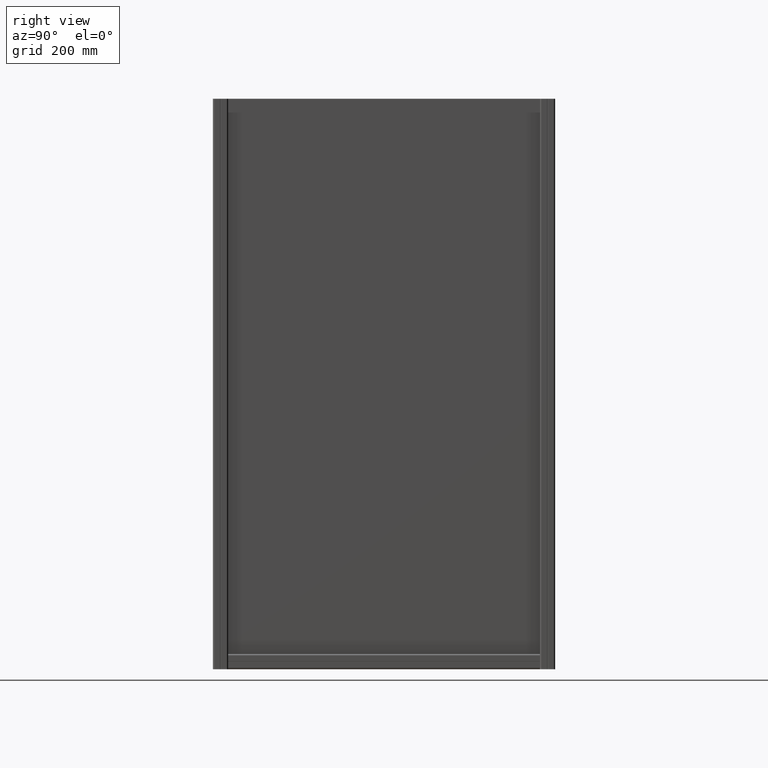
[diagram: clean part render]
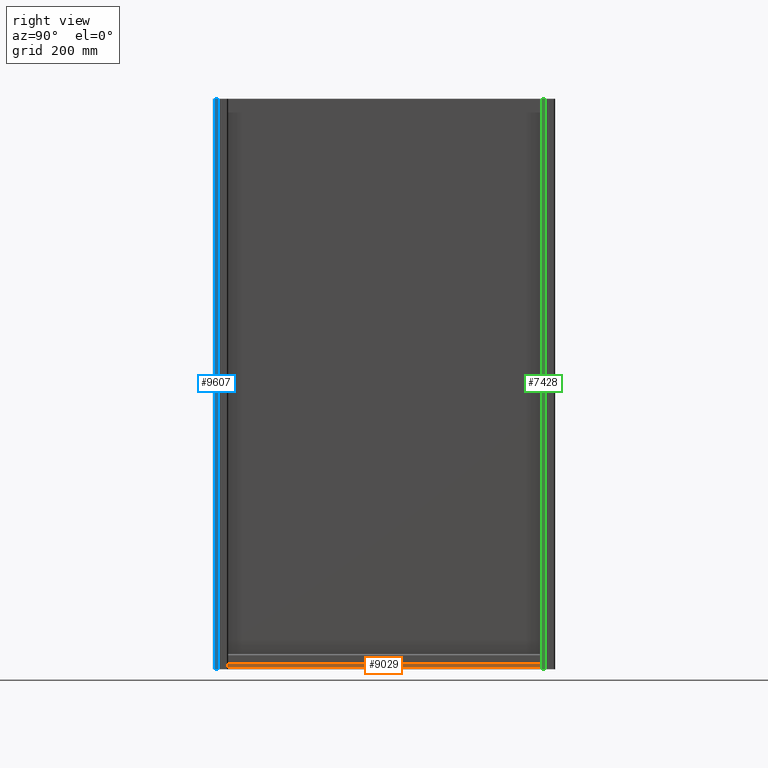
[diagram: same view with three faces highlighted in distinct colors, each labeled with its STEP entity id]
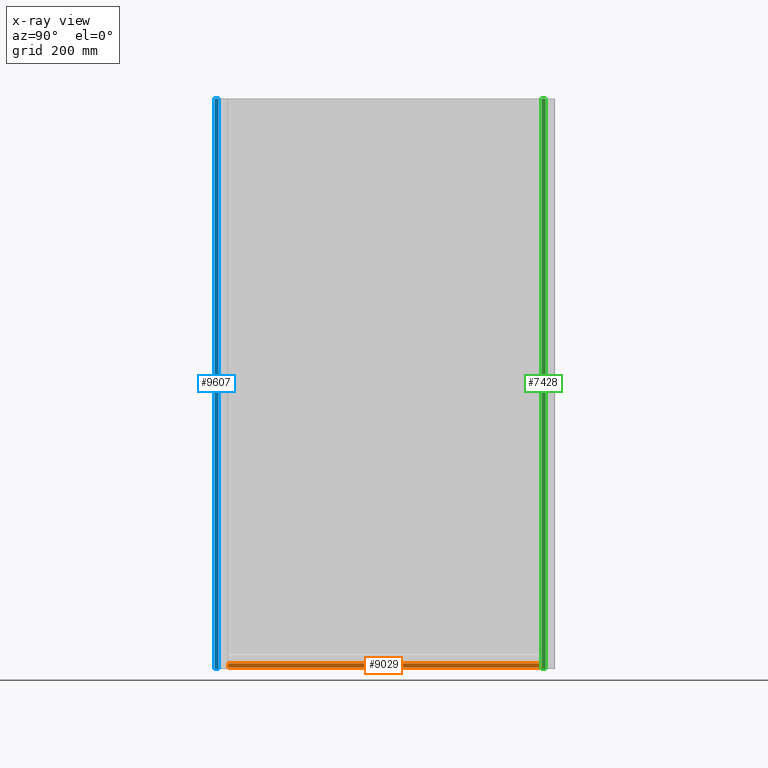
[diagram: x-ray of the same camera — body ghosted, the three highlighted faces saturated]
A machine part, right view with three faces highlighted in distinct colors.
The next image is the same camera in x-ray (body ghosted, the three faces saturated) — at least one of them is partly hidden behind the body in this view.
Their STEP definitions:

[orange] entity #9029 — the highlighted planar face has unit normal (-1, 0, 0).
#1090 = CARTESIAN_POINT ( 'NONE',  ( 20.00000000000000000, -5.100000000000370903, 600.0000000000000000 ) ) ;
#1132 = ORIENTED_EDGE ( 'NONE', *, *, #12551, .T. ) ;
#1246 = VERTEX_POINT ( 'NONE', #1090 ) ;
#1634 = ORIENTED_EDGE ( 'NONE', *, *, #11438, .F. ) ;
#2298 = CARTESIAN_POINT ( 'NONE',  ( 20.00000000000000000, -5.100000000000370903, -220.0000000000000000 ) ) ;
#2361 = CARTESIAN_POINT ( 'NONE',  ( 20.00000000000000000, -15.49999999999820055, 600.0000000000000000 ) ) ;
#3034 = CARTESIAN_POINT ( 'NONE',  ( 20.00000000000000000, -15.49999999999820055, 600.0000000000000000 ) ) ;
#3829 = LINE ( 'NONE', #12624, #9082 ) ;
#3875 = DIRECTION ( 'NONE',  ( -3.336006684571485188E-16, 1.000000000000000000, 0.000000000000000000 ) ) ;
#4172 = VECTOR ( 'NONE', #3875, 1000.000000000000000 ) ;
#4466 = LINE ( 'NONE', #2361, #4172 ) ;
#4757 = FACE_OUTER_BOUND ( 'NONE', #6727, .T. ) ;
#5211 = PLANE ( 'NONE',  #8015 ) ;
#5807 = VECTOR ( 'NONE', #10856, 1000.000000000000000 ) ;
#5955 = VERTEX_POINT ( 'NONE', #15969 ) ;
#6303 = LINE ( 'NONE', #9638, #5807 ) ;
#6520 = DIRECTION ( 'NONE',  ( 0.000000000000000000, 0.000000000000000000, 1.000000000000000000 ) ) ;
#6727 = EDGE_LOOP ( 'NONE', ( #1634, #12568, #12440, #1132 ) ) ;
#8015 = AXIS2_PLACEMENT_3D ( 'NONE', #8880, #15450, #6520 ) ;
#8453 = EDGE_CURVE ( 'NONE', #5955, #14836, #3829, .T. ) ;
#8880 = CARTESIAN_POINT ( 'NONE',  ( 20.00000000000000000, -15.49999999999820055, 800.0000000000000000 ) ) ;
#9029 = ADVANCED_FACE ( 'NONE', ( #4757 ), #5211, .F. ) ;
#9082 = VECTOR ( 'NONE', #10129, 1000.000000000000000 ) ;
#9247 = VERTEX_POINT ( 'NONE', #2298 ) ;
#9295 = EDGE_CURVE ( 'NONE', #9247, #5955, #16521, .T. ) ;
#9638 = CARTESIAN_POINT ( 'NONE',  ( 20.00000000000000000, -5.100000000000360245, 800.0000000000000000 ) ) ;
#9686 = CARTESIAN_POINT ( 'NONE',  ( 20.00000000000000000, -5.100000000000370903, -220.0000000000000000 ) ) ;
#10129 = DIRECTION ( 'NONE',  ( 0.000000000000000000, 0.000000000000000000, 1.000000000000000000 ) ) ;
#10856 = DIRECTION ( 'NONE',  ( 0.000000000000000000, 0.000000000000000000, 1.000000000000000000 ) ) ;
#10901 = DIRECTION ( 'NONE',  ( 0.000000000000000000, -1.000000000000000000, 0.000000000000000000 ) ) ;
#11196 = VECTOR ( 'NONE', #10901, 1000.000000000000000 ) ;
#11438 = EDGE_CURVE ( 'NONE', #14836, #1246, #4466, .T. ) ;
#12440 = ORIENTED_EDGE ( 'NONE', *, *, #9295, .F. ) ;
#12551 = EDGE_CURVE ( 'NONE', #9247, #1246, #6303, .T. ) ;
#12568 = ORIENTED_EDGE ( 'NONE', *, *, #8453, .F. ) ;
#12624 = CARTESIAN_POINT ( 'NONE',  ( 20.00000000000000000, -15.49999999999820055, 800.0000000000000000 ) ) ;
#14836 = VERTEX_POINT ( 'NONE', #3034 ) ;
#15450 = DIRECTION ( 'NONE',  ( -1.000000000000000000, 0.000000000000000000, 0.000000000000000000 ) ) ;
#15969 = CARTESIAN_POINT ( 'NONE',  ( 20.00000000000000000, -15.49999999999820055, -220.0000000000000000 ) ) ;
#16521 = LINE ( 'NONE', #9686, #11196 ) ;

[blue] entity #9607 — the highlighted planar face has unit normal (-1, 0, 0).
#275 = CARTESIAN_POINT ( 'NONE',  ( -20.00000000000000000, 15.50000000000494893, 800.0000000000000000 ) ) ;
#1133 = ORIENTED_EDGE ( 'NONE', *, *, #5181, .F. ) ;
#2004 = LINE ( 'NONE', #9190, #12895 ) ;
#2527 = VERTEX_POINT ( 'NONE', #15636 ) ;
#2590 = LINE ( 'NONE', #12347, #13289 ) ;
#3005 = LINE ( 'NONE', #4390, #3035 ) ;
#3035 = VECTOR ( 'NONE', #10737, 1000.000000000000000 ) ;
#3172 = LINE ( 'NONE', #4906, #3318 ) ;
#3318 = VECTOR ( 'NONE', #6318, 1000.000000000000000 ) ;
#4111 = DIRECTION ( 'NONE',  ( 1.000000000000000000, 0.000000000000000000, 0.000000000000000000 ) ) ;
#4390 = CARTESIAN_POINT ( 'NONE',  ( -20.00000000000000000, 15.50000000000494893, 600.0000000000000000 ) ) ;
#4437 = CARTESIAN_POINT ( 'NONE',  ( -20.00000000000000000, 15.50000000000494893, -900.0000000000000000 ) ) ;
#4906 = CARTESIAN_POINT ( 'NONE',  ( -20.00000000000000000, 5.100000000000360245, 800.0000000000000000 ) ) ;
#4993 = CARTESIAN_POINT ( 'NONE',  ( -20.00000000000000000, 15.50000000000494893, 600.0000000000000000 ) ) ;
#5077 = DIRECTION ( 'NONE',  ( 0.000000000000000000, 1.000000000000000000, 0.000000000000000000 ) ) ;
#5181 = EDGE_CURVE ( 'NONE', #10653, #8799, #2590, .T. ) ;
#6318 = DIRECTION ( 'NONE',  ( 0.000000000000000000, 0.000000000000000000, -1.000000000000000000 ) ) ;
#6528 = DIRECTION ( 'NONE',  ( 0.000000000000000000, 1.000000000000000000, 0.000000000000000000 ) ) ;
#8799 = VERTEX_POINT ( 'NONE', #4993 ) ;
#9190 = CARTESIAN_POINT ( 'NONE',  ( -20.00000000000000000, 5.100000000000360245, -900.0000000000000000 ) ) ;
#9607 = ADVANCED_FACE ( 'NONE', ( #11962 ), #14355, .F. ) ;
#10234 = EDGE_CURVE ( 'NONE', #15051, #10653, #2004, .T. ) ;
#10282 = AXIS2_PLACEMENT_3D ( 'NONE', #275, #4111, #6528 ) ;
#10364 = EDGE_LOOP ( 'NONE', ( #13962, #1133, #14442, #14095 ) ) ;
#10653 = VERTEX_POINT ( 'NONE', #4437 ) ;
#10737 = DIRECTION ( 'NONE',  ( 0.000000000000000000, -1.000000000000000000, 0.000000000000000000 ) ) ;
#10897 = DIRECTION ( 'NONE',  ( 0.000000000000000000, 0.000000000000000000, 1.000000000000000000 ) ) ;
#11294 = CARTESIAN_POINT ( 'NONE',  ( -20.00000000000000000, 5.100000000000360245, -900.0000000000000000 ) ) ;
#11962 = FACE_OUTER_BOUND ( 'NONE', #10364, .T. ) ;
#12347 = CARTESIAN_POINT ( 'NONE',  ( -20.00000000000000000, 15.50000000000494893, 800.0000000000000000 ) ) ;
#12895 = VECTOR ( 'NONE', #5077, 1000.000000000000000 ) ;
#13289 = VECTOR ( 'NONE', #10897, 1000.000000000000000 ) ;
#13741 = EDGE_CURVE ( 'NONE', #8799, #2527, #3005, .T. ) ;
#13962 = ORIENTED_EDGE ( 'NONE', *, *, #13741, .F. ) ;
#14095 = ORIENTED_EDGE ( 'NONE', *, *, #16409, .F. ) ;
#14355 = PLANE ( 'NONE',  #10282 ) ;
#14442 = ORIENTED_EDGE ( 'NONE', *, *, #10234, .F. ) ;
#15051 = VERTEX_POINT ( 'NONE', #11294 ) ;
#15636 = CARTESIAN_POINT ( 'NONE',  ( -20.00000000000000000, 5.100000000000360245, 600.0000000000000000 ) ) ;
#16409 = EDGE_CURVE ( 'NONE', #2527, #15051, #3172, .T. ) ;

[green] entity #7428 — the highlighted planar face has unit normal (-1, 0, 0).
#89 = DIRECTION ( 'NONE',  ( 0.000000000000000000, -1.000000000000000000, 0.000000000000000000 ) ) ;
#348 = ORIENTED_EDGE ( 'NONE', *, *, #4765, .T. ) ;
#2825 = EDGE_CURVE ( 'NONE', #2943, #13290, #3069, .T. ) ;
#2943 = VERTEX_POINT ( 'NONE', #10607 ) ;
#2982 = VECTOR ( 'NONE', #14307, 1000.000000000000000 ) ;
#3054 = DIRECTION ( 'NONE',  ( 0.000000000000000000, 0.000000000000000000, 1.000000000000000000 ) ) ;
#3069 = LINE ( 'NONE', #7440, #3181 ) ;
#3174 = LINE ( 'NONE', #12851, #2982 ) ;
#3181 = VECTOR ( 'NONE', #89, 1000.000000000000000 ) ;
#4098 = VERTEX_POINT ( 'NONE', #13625 ) ;
#4175 = VECTOR ( 'NONE', #13948, 1000.000000000000000 ) ;
#4176 = PLANE ( 'NONE',  #12655 ) ;
#4227 = LINE ( 'NONE', #12695, #4175 ) ;
#4765 = EDGE_CURVE ( 'NONE', #2943, #4098, #12025, .T. ) ;
#6414 = VECTOR ( 'NONE', #3054, 1000.000000000000000 ) ;
#6540 = EDGE_LOOP ( 'NONE', ( #14687, #12868, #7136, #348 ) ) ;
#6705 = CARTESIAN_POINT ( 'NONE',  ( 20.00000000000000000, -15.49999999999820055, 800.0000000000000000 ) ) ;
#7136 = ORIENTED_EDGE ( 'NONE', *, *, #2825, .F. ) ;
#7428 = ADVANCED_FACE ( 'NONE', ( #11706 ), #4176, .F. ) ;
#7440 = CARTESIAN_POINT ( 'NONE',  ( 20.00000000000000000, -5.100000000000370903, -900.0000000000000000 ) ) ;
#8219 = EDGE_CURVE ( 'NONE', #9978, #4098, #4227, .T. ) ;
#9064 = DIRECTION ( 'NONE',  ( -1.000000000000000000, 0.000000000000000000, 0.000000000000000000 ) ) ;
#9380 = CARTESIAN_POINT ( 'NONE',  ( 20.00000000000000000, -15.49999999999820055, 600.0000000000000000 ) ) ;
#9978 = VERTEX_POINT ( 'NONE', #9380 ) ;
#10517 = CARTESIAN_POINT ( 'NONE',  ( 20.00000000000000000, -5.100000000000360245, 800.0000000000000000 ) ) ;
#10607 = CARTESIAN_POINT ( 'NONE',  ( 20.00000000000000000, -5.100000000000370903, -900.0000000000000000 ) ) ;
#10629 = DIRECTION ( 'NONE',  ( 0.000000000000000000, 0.000000000000000000, 1.000000000000000000 ) ) ;
#11706 = FACE_OUTER_BOUND ( 'NONE', #6540, .T. ) ;
#12025 = LINE ( 'NONE', #10517, #6414 ) ;
#12655 = AXIS2_PLACEMENT_3D ( 'NONE', #6705, #9064, #10629 ) ;
#12695 = CARTESIAN_POINT ( 'NONE',  ( 20.00000000000000000, -15.49999999999820055, 600.0000000000000000 ) ) ;
#12851 = CARTESIAN_POINT ( 'NONE',  ( 20.00000000000000000, -15.49999999999820055, 800.0000000000000000 ) ) ;
#12868 = ORIENTED_EDGE ( 'NONE', *, *, #13556, .F. ) ;
#13290 = VERTEX_POINT ( 'NONE', #15576 ) ;
#13556 = EDGE_CURVE ( 'NONE', #13290, #9978, #3174, .T. ) ;
#13625 = CARTESIAN_POINT ( 'NONE',  ( 20.00000000000000000, -5.100000000000370903, 600.0000000000000000 ) ) ;
#13948 = DIRECTION ( 'NONE',  ( -3.336006684571485188E-16, 1.000000000000000000, 0.000000000000000000 ) ) ;
#14307 = DIRECTION ( 'NONE',  ( 0.000000000000000000, 0.000000000000000000, 1.000000000000000000 ) ) ;
#14687 = ORIENTED_EDGE ( 'NONE', *, *, #8219, .F. ) ;
#15576 = CARTESIAN_POINT ( 'NONE',  ( 20.00000000000000000, -15.49999999999820055, -900.0000000000000000 ) ) ;